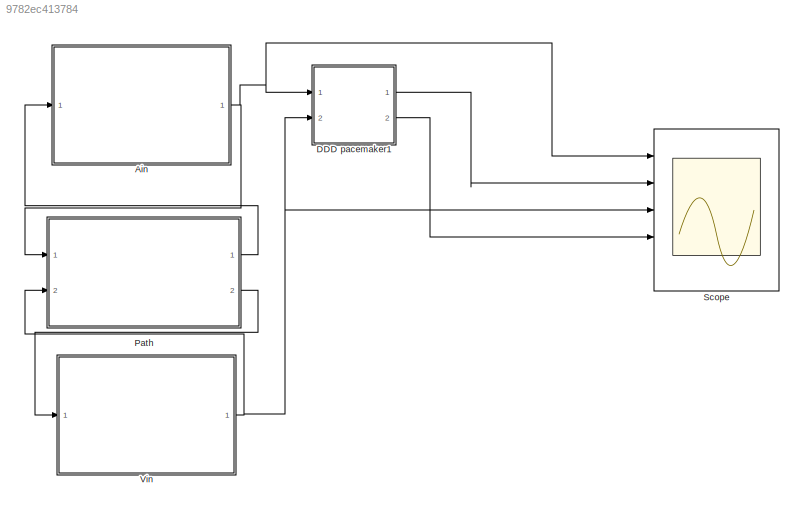
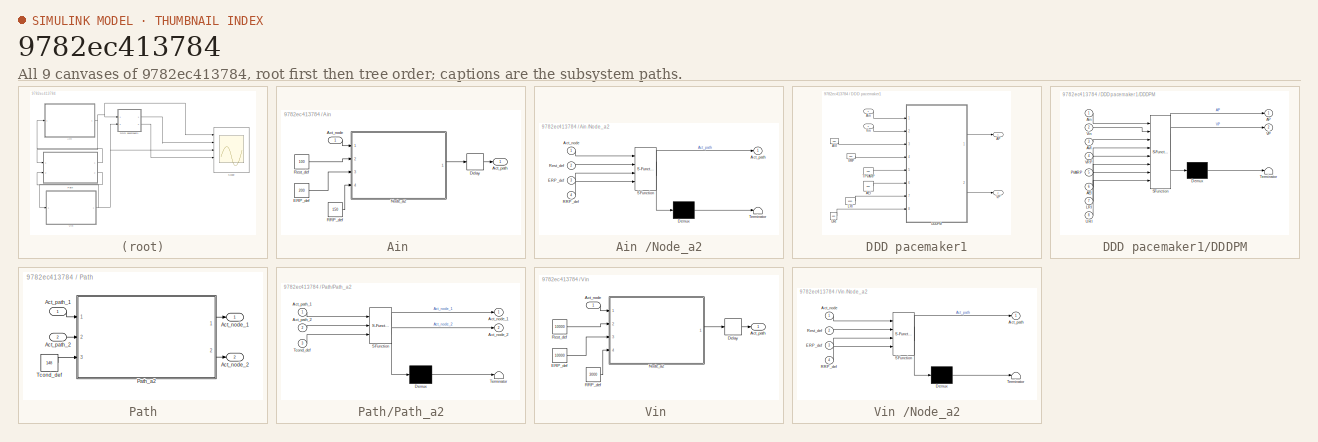
[diagram: thumbnail index - all 9 canvases of the model, root first then tree order]
MODEL slx_9782ec413784
KIND model
CONFIG AbsTol = auto
CONFIG EnableMultiTasking = on
CONFIG FixedStep = 1
CONFIG MaxStep = auto
CONFIG MinStep = auto
CONFIG RelTol = 1e-3
CONFIG SampleTimeConstraint = Unconstrained
CONFIG Solver = FixedStepDiscrete
CONFIG SolverName = FixedStepDiscrete
CONFIG StartTime = 0.0
CONFIG StopTime = 6000
BLOCK [SubSystem] Ain 
  AncestorBlock = model_library/Node
  Ports = [1, 1]
  RequestExecContextInheritance = off
BLOCK [Inport] Ain /Act_node
  IconDisplay = Port number
BLOCK [Outport] Ain /Act_path
  IconDisplay = Port number
  VectorParamsAs1DForOutWhenUnconnected = off
BLOCK [Delay] Ain /Delay
  DelayLength = 1
  InitialCondition = 0
  InputPortMap = u0
  Ports = [1, 1]
BLOCK [Constant] Ain /ERP_def
  OutDataTypeStr = uint16
  Value = 200
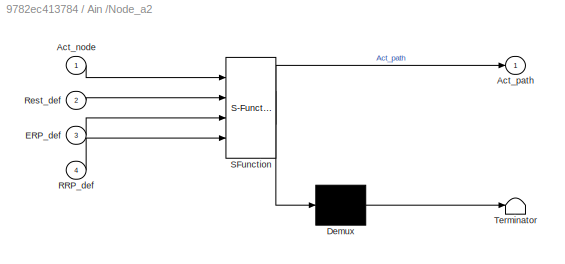
BLOCK [SubSystem] Ain /Node_a2
  ErrorFcn = Stateflow.Translate.translate
  PermitHierarchicalResolution = ExplicitOnly
  Ports = [4, 1]
  RequestExecContextInheritance = off
  SFBlockType = Chart
  TreatAsAtomicUnit = on
BLOCK [Demux] Ain /Node_a2/ Demux 
  Outputs = 1
  Ports = [1, 1]
BLOCK [S-Function] Ain /Node_a2/ SFunction 
  EnableBusSupport = on
  FunctionName = sf_sfun
  PortCounts = [4 2]
  Ports = [4, 2]
  SFcnIsStateOwnerBlock = off
  SFunctionDeploymentMode = off
  Tag = Stateflow S-Function 10
BLOCK [Terminator] Ain /Node_a2/ Terminator 
BLOCK [Inport] Ain /Node_a2/Act_node
  IconDisplay = Port number
BLOCK [Outport] Ain /Node_a2/Act_path
  IconDisplay = Port number
  VectorParamsAs1DForOutWhenUnconnected = off
BLOCK [Inport] Ain /Node_a2/ERP_def
  IconDisplay = Port number
  Port = 3
BLOCK [Inport] Ain /Node_a2/RRP_def
  IconDisplay = Port number
  Port = 4
BLOCK [Inport] Ain /Node_a2/Rest_def
  IconDisplay = Port number
  Port = 2
BLOCK [Constant] Ain /RRP_def
  OutDataTypeStr = uint16
  Value = 150
BLOCK [Constant] Ain /Rest_def
  OutDataTypeStr = uint16
  Value = 100
BLOCK [SubSystem] DDD pacemaker1
  Ports = [2, 2]
  RequestExecContextInheritance = off
BLOCK [Constant] DDD pacemaker1/AEI
  Value = 500
BLOCK [Outport] DDD pacemaker1/AP
  IconDisplay = Port number
BLOCK [Constant] DDD pacemaker1/AVI
  OutDataTypeStr = uint16
  Value = 150
BLOCK [Inport] DDD pacemaker1/Ain
  IconDisplay = Port number
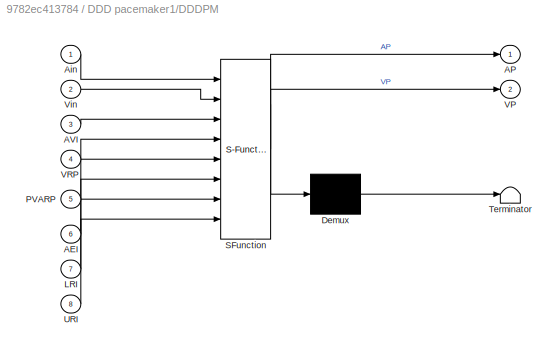
BLOCK [SubSystem] DDD pacemaker1/DDDPM
  ErrorFcn = Stateflow.Translate.translate
  PermitHierarchicalResolution = ExplicitOnly
  Ports = [8, 2]
  RequestExecContextInheritance = off
  SFBlockType = Chart
  TreatAsAtomicUnit = on
BLOCK [Demux] DDD pacemaker1/DDDPM/ Demux 
  Outputs = 1
  Ports = [1, 1]
BLOCK [S-Function] DDD pacemaker1/DDDPM/ SFunction 
  EnableBusSupport = on
  FunctionName = sf_sfun
  PortCounts = [8 3]
  Ports = [8, 3]
  SFcnIsStateOwnerBlock = off
  SFunctionDeploymentMode = off
  Tag = Stateflow S-Function 2
BLOCK [Terminator] DDD pacemaker1/DDDPM/ Terminator 
BLOCK [Inport] DDD pacemaker1/DDDPM/AEI
  IconDisplay = Port number
  Port = 6
BLOCK [Outport] DDD pacemaker1/DDDPM/AP
  IconDisplay = Port number
BLOCK [Inport] DDD pacemaker1/DDDPM/AVI
  IconDisplay = Port number
  Port = 3
BLOCK [Inport] DDD pacemaker1/DDDPM/Ain
  IconDisplay = Port number
BLOCK [Inport] DDD pacemaker1/DDDPM/LRI
  IconDisplay = Port number
  Port = 7
BLOCK [Inport] DDD pacemaker1/DDDPM/PVARP
  IconDisplay = Port number
  Port = 5
BLOCK [Inport] DDD pacemaker1/DDDPM/URI
  IconDisplay = Port number
  Port = 8
BLOCK [Outport] DDD pacemaker1/DDDPM/VP
  IconDisplay = Port number
  Port = 2
BLOCK [Inport] DDD pacemaker1/DDDPM/VRP
  IconDisplay = Port number
  Port = 4
BLOCK [Inport] DDD pacemaker1/DDDPM/Vin
  IconDisplay = Port number
  Port = 2
BLOCK [Constant] DDD pacemaker1/LRI
  OutDataTypeStr = uint16
  Value = 1000
BLOCK [Constant] DDD pacemaker1/TPVARP
  OutDataTypeStr = uint16
  Value = 100
BLOCK [Constant] DDD pacemaker1/URI
  OutDataTypeStr = uint16
  Value = 400
BLOCK [Outport] DDD pacemaker1/VP
  IconDisplay = Port number
  Port = 2
BLOCK [Constant] DDD pacemaker1/VRP
  OutDataTypeStr = uint16
  Value = 150
BLOCK [Inport] DDD pacemaker1/Vin
  IconDisplay = Port number
  Port = 2
BLOCK [SubSystem] Path
  AncestorBlock = model_library/Path
  Ports = [2, 2]
  RequestExecContextInheritance = off
BLOCK [Outport] Path/Act_node_1
  IconDisplay = Port number
  VectorParamsAs1DForOutWhenUnconnected = off
BLOCK [Outport] Path/Act_node_2
  IconDisplay = Port number
  Port = 2
  VectorParamsAs1DForOutWhenUnconnected = off
BLOCK [Inport] Path/Act_path_1
  IconDisplay = Port number
BLOCK [Inport] Path/Act_path_2
  IconDisplay = Port number
  Port = 2
BLOCK [SubSystem] Path/Path_a2
  ErrorFcn = Stateflow.Translate.translate
  PermitHierarchicalResolution = ExplicitOnly
  Ports = [3, 2]
  RequestExecContextInheritance = off
  SFBlockType = Chart
  TreatAsAtomicUnit = on
BLOCK [Demux] Path/Path_a2/ Demux 
  Outputs = 1
  Ports = [1, 1]
BLOCK [S-Function] Path/Path_a2/ SFunction 
  EnableBusSupport = on
  FunctionName = sf_sfun
  PortCounts = [3 3]
  Ports = [3, 3]
  SFcnIsStateOwnerBlock = off
  SFunctionDeploymentMode = off
  Tag = Stateflow S-Function 11
BLOCK [Terminator] Path/Path_a2/ Terminator 
BLOCK [Outport] Path/Path_a2/Act_node_1
  IconDisplay = Port number
  VectorParamsAs1DForOutWhenUnconnected = off
BLOCK [Outport] Path/Path_a2/Act_node_2
  IconDisplay = Port number
  Port = 2
  VectorParamsAs1DForOutWhenUnconnected = off
BLOCK [Inport] Path/Path_a2/Act_path_1
  IconDisplay = Port number
BLOCK [Inport] Path/Path_a2/Act_path_2
  IconDisplay = Port number
  Port = 2
BLOCK [Inport] Path/Path_a2/Tcond_def
  IconDisplay = Port number
  Port = 3
BLOCK [Constant] Path/Tcond_def
  OutDataTypeStr = uint16
  Value = 148
BLOCK [Scope] Scope
  Floating = off
  NumInputPorts = 5
  Ports = [5]
  ScopeSpecificationString = Simulink.scopes.TimeScopeBlockCfg('CurrentConfiguration', extmgr.ConfigurationSet(extmgr.Configuration('Core','General UI',true),extmgr.Configuration('Core','Source UI',true),extmgr.Configuration('Sources','WiredSimulink',true),extmgr.Configuration('Visuals','Time Domain',true,'SerializedDisplays',{struct('MinYLimReal','-0.125','MaxYLimReal','1.125','YLabelReal','','MinYLimMag','0.00000','MaxYLimM...<+1671ch>
BLOCK [SubSystem] Vin 
  AncestorBlock = model_library/Node
  Ports = [1, 1]
  RequestExecContextInheritance = off
BLOCK [Inport] Vin /Act_node
  IconDisplay = Port number
BLOCK [Outport] Vin /Act_path
  IconDisplay = Port number
  VectorParamsAs1DForOutWhenUnconnected = off
BLOCK [Delay] Vin /Delay
  DelayLength = 1
  InitialCondition = 0
  InputPortMap = u0
  Ports = [1, 1]
BLOCK [Constant] Vin /ERP_def
  OutDataTypeStr = uint16
  Value = 10000
BLOCK [SubSystem] Vin /Node_a2
  ErrorFcn = Stateflow.Translate.translate
  PermitHierarchicalResolution = ExplicitOnly
  Ports = [4, 1]
  RequestExecContextInheritance = off
  SFBlockType = Chart
  TreatAsAtomicUnit = on
BLOCK [Demux] Vin /Node_a2/ Demux 
  Outputs = 1
  Ports = [1, 1]
BLOCK [S-Function] Vin /Node_a2/ SFunction 
  EnableBusSupport = on
  FunctionName = sf_sfun
  PortCounts = [4 2]
  Ports = [4, 2]
  SFcnIsStateOwnerBlock = off
  SFunctionDeploymentMode = off
  Tag = Stateflow S-Function 1
BLOCK [Terminator] Vin /Node_a2/ Terminator 
BLOCK [Inport] Vin /Node_a2/Act_node
  IconDisplay = Port number
BLOCK [Outport] Vin /Node_a2/Act_path
  IconDisplay = Port number
  VectorParamsAs1DForOutWhenUnconnected = off
BLOCK [Inport] Vin /Node_a2/ERP_def
  IconDisplay = Port number
  Port = 3
BLOCK [Inport] Vin /Node_a2/RRP_def
  IconDisplay = Port number
  Port = 4
BLOCK [Inport] Vin /Node_a2/Rest_def
  IconDisplay = Port number
  Port = 2
BLOCK [Constant] Vin /RRP_def
  OutDataTypeStr = uint16
  Value = 3000
BLOCK [Constant] Vin /Rest_def
  OutDataTypeStr = uint16
  Value = 10000
NET Ain :1 -> DDD pacemaker1:1, Path:1, Scope:1
LINE DDD pacemaker1/AEI:1 -> DDD pacemaker1/DDDPM:6
LINE DDD pacemaker1/AVI:1 -> DDD pacemaker1/DDDPM:3
LINE DDD pacemaker1/Ain:1 -> DDD pacemaker1/DDDPM:1
LINE DDD pacemaker1/DDDPM:1 -> DDD pacemaker1/AP:1
LINE DDD pacemaker1/DDDPM:2 -> DDD pacemaker1/VP:1
LINE DDD pacemaker1/LRI:1 -> DDD pacemaker1/DDDPM:7
LINE DDD pacemaker1/TPVARP:1 -> DDD pacemaker1/DDDPM:5
LINE DDD pacemaker1/URI:1 -> DDD pacemaker1/DDDPM:8
LINE DDD pacemaker1/VRP:1 -> DDD pacemaker1/DDDPM:4
LINE DDD pacemaker1/Vin:1 -> DDD pacemaker1/DDDPM:2
LINE DDD pacemaker1:1 -> Scope:2
LINE DDD pacemaker1:2 -> Scope:4
LINE Path:1 -> Ain :1
LINE Path:2 -> Vin :1
NET Vin :1 -> DDD pacemaker1:2, Path:2, Scope:3
note: NET lines group one-source signal fan-out (src -> all destinations, sorted); 1:1 wires keep LINE
CHART Vin
/Node_a2 states=5 transitions=12
  STATE_LABEL 'node'
  STATE_LABEL 'Rest'
  STATE_LABEL 'RRP\n'
  STATE_LABEL 'ERP'
  STATE_LABEL 'temp'
  STATE_LABEL '{Rest_cur=Rest_def;}'
  STATE_LABEL '[Act_node==false && Rest_cur<=uint16(0)]/{Act_path=true;uptime= uint16(0);ERP_cur=ERP_def;}'
  STATE_LABEL '[Act_node==true]/{Act_path=true;uptime= uint16(0);ERP_cur=ERP_def;}'
  STATE_LABEL '[Act_node==false && Rest_cur>uint16(0)]/{Rest_cur = Rest_cur - uint16(1);}'
  STATE_LABEL '[RRP_cur<=0]/{Rest_cur=Rest_def;}'
  STATE_LABEL '[Act_node==false && RRP_cur>0]/{RRP_cur=RRP_cur-uint16(1);}'
  STATE_LABEL '[Act_node==true]/{Act_path=true;uptime= uint16(0);ERP_cur=ERP_def;}'
  STATE_LABEL '[ERP_cur<=uint16(0)]/{RRP_cur=RRP_def;}'
  STATE_LABEL '[uptime<uint16(1)]/{uptime = uptime + uint16(1);ERP_cur =ERP_cur - uint16(1);}'
  STATE_LABEL '[uptime>=uint16(1)]/{Act_path=false;}'
  STATE_LABEL '[Act_node==true]'
  STATE_LABEL '{ERP_cur = ERP_cur - uint16(1);}'
  STATE_LABEL 'Rest'
  STATE_LABEL 'RRP\n'
  STATE_LABEL 'ERP'
  STATE_LABEL 'temp'
CHART DDD pacemaker1/DDDPM states=21 transitions=36
  STATE_LABEL 'DDDPM\n'
  STATE_LABEL 'AVI\n'
  STATE_LABEL 'ActiveAVI'
  STATE_LABEL 'CAVI'
  STATE_LABEL 'IdleAVI'
  STATE_LABEL '{VP=false,VP1=false;}'
  STATE_LABEL '[tmpAVI>0]/{tmpAVI=tmpAVI-1;}'
  STATE_LABEL '[AS==true || AP1==true]/\n{tmpAVI=AVI;}'
  STATE_LABEL '[tmpAVI<=0&&enterURI==true]/\n{VP=true, VP1=true;}'
  STATE_LABEL '[VS==true || VP1==true]'
  STATE_LABEL '{VP=false,VP1=false;}'
  STATE_LABEL 'URI\n'
  STATE_LABEL 'IdleURI'
  STATE_LABEL 'ActiveURI'
  STATE_LABEL '{enterURI=true;}'
  STATE_LABEL '[VP1==true || VS==true]/\n{tmpURI=URI, enterURI=false;}'
  STATE_LABEL '[tmpURI<=0]/{enterURI=true;}'
  STATE_LABEL '[tmpURI>0]/{tmpURI = tmpURI - 1;}'
  STATE_LABEL '[VS==true || VP1==true]/\n{tmpURI=URI, enterURI=false;}'
  STATE_LABEL 'PVARP\n'
  STATE_LABEL 'AinPVARP'
  STATE_LABEL 'IdlePVARP'
  STATE_LABEL 'ActivePVARP'
  STATE_LABEL 'PVARPAR'
  STATE_LABEL '[Ain==true]/{AS=true}'
  STATE_LABEL '{AS=false;}'
  STATE_LABEL '{AS=false;}'
  STATE_LABEL '[VS==true || VP1==true]/{tmpPVARP=PVARP;}'
  STATE_LABEL '[tmpPVARP<=0]'
  STATE_LABEL '[tmpPVARP>0]/\n{tmpPVARP = tmpPVARP - 1;}'
  STATE_LABEL '{AR=false,tmpPVARP = tmpPVARP - 1;}'
  STATE_LABEL '[Ain==true]/{AR=true;}'
  STATE_LABEL 'LRI\n'
  STATE_LABEL 'IdleLRI'
  STATE_LABEL 'LRIVP'
  STATE_LABEL 'ActiveLRI'
  STATE_LABEL '[VS==true||VP1==true]/\n{tmpLRI=LRI;}'
  STATE_LABEL '{tmpLRI = LRI,APLRI=2,AP=false,AP1=false;}'
  STATE_LABEL '[tmpLRI>AVI]/\n{tmpLRI = tmpLRI-1;}'
  STATE_LABEL '/{VP=false, VP1=false, tmpLRI=LRI;}'
CHART Ain
/Node_a2 states=5 transitions=12
  STATE_LABEL 'node'
  STATE_LABEL 'Rest'
  STATE_LABEL 'RRP\n'
  STATE_LABEL 'ERP'
  STATE_LABEL 'temp'
  STATE_LABEL '{Rest_cur=Rest_def;}'
  STATE_LABEL '[Act_node==false && Rest_cur<=uint16(0)]/{Act_path=true;uptime= uint16(0);ERP_cur=ERP_def;}'
  STATE_LABEL '[Act_node==true]/{Act_path=true;uptime= uint16(0);ERP_cur=ERP_def;}'
  STATE_LABEL '[Act_node==false && Rest_cur>uint16(0)]/{Rest_cur = Rest_cur - uint16(1);}'
  STATE_LABEL '[RRP_cur<=0]/{Rest_cur=Rest_def;}'
  STATE_LABEL '[Act_node==false && RRP_cur>0]/{RRP_cur=RRP_cur-uint16(1);}'
  STATE_LABEL '[Act_node==true]/{Act_path=true;uptime= uint16(0);ERP_cur=ERP_def;}'
  STATE_LABEL '[ERP_cur<=uint16(0)]/{RRP_cur=RRP_def;}'
  STATE_LABEL '[uptime<uint16(1)]/{uptime = uptime + uint16(1);ERP_cur =ERP_cur - uint16(1);}'
  STATE_LABEL '[uptime>=uint16(1)]/{Act_path=false;}'
  STATE_LABEL '[Act_node==true]'
  STATE_LABEL '{ERP_cur = ERP_cur - uint16(1);}'
  STATE_LABEL 'Rest'
  STATE_LABEL 'RRP\n'
  STATE_LABEL 'ERP'
  STATE_LABEL 'temp'
CHART Path/Path_a2 states=5 transitions=11
  STATE_LABEL 'path'
  STATE_LABEL 'Idle'
  STATE_LABEL 'Ante'
  STATE_LABEL 'Retro'
  STATE_LABEL 'Wait'
  STATE_LABEL '[Act_path_1==true]/{Tcond_cur=Tcond_def;}'
  STATE_LABEL '[Act_path_2==true]/{Tcond_cur=Tcond_def;}'
  STATE_LABEL '[uptime>0]/{Act_node_1=false;Act_node_2=false;}'
  STATE_LABEL '[Act_path_2==false && Tcond_cur>uint16(0)]/{Tcond_cur = Tcond_cur - uint16(1);}'
  STATE_LABEL '[Act_path_1==false && Tcond_cur>uint16(0)]/{Tcond_cur = Tcond_cur - uint16(1);}'
  STATE_LABEL '[Act_path_2==true]/{uptime=uint16(0);}'
  STATE_LABEL '[Act_path_2==false && Tcond_cur<=uint16(0)]/{Act_node_2=true;uptime=uint16(0);}'
  STATE_LABEL '[Act_path_1==true]/{uptime=uint16(0);}'
  STATE_LABEL '[Act_path_1==false && Tcond_cur<=uint16(0)]/{Act_node_1=true;uptime=uint16(0);}'
  STATE_LABEL '[uptime<=uint16(0)]/{uptime = uptime + uint16(1);}'
  STATE_LABEL 'Idle'
  STATE_LABEL 'Ante'
  STATE_LABEL 'Retro'
  STATE_LABEL 'Wait'
